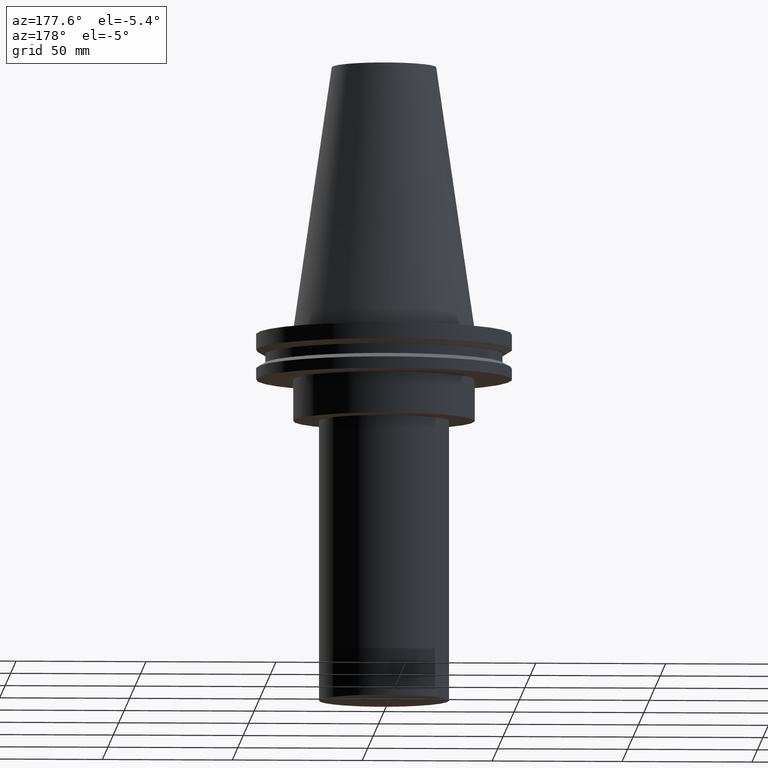
[diagram: clean part render]
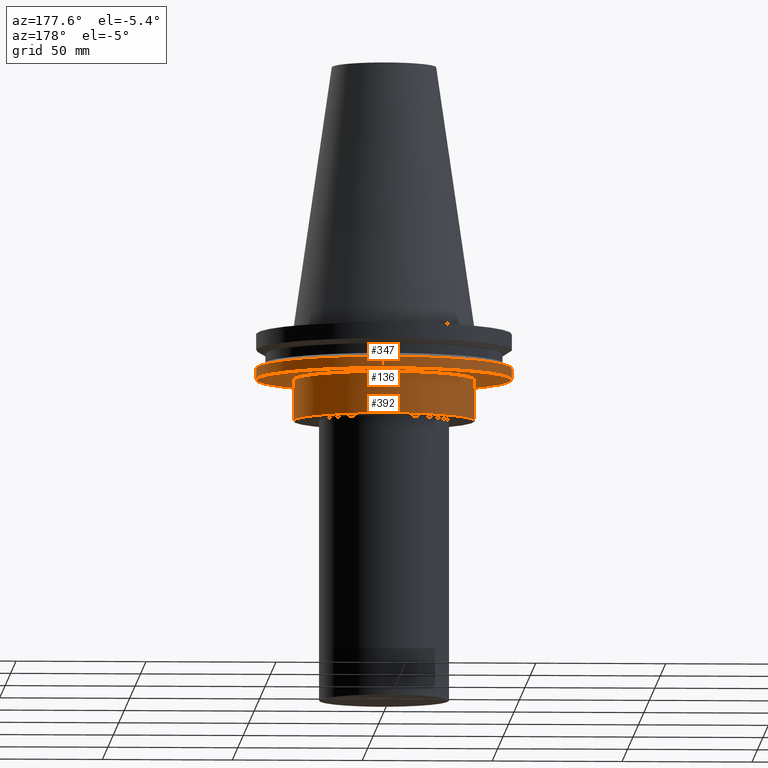
[diagram: same view with one multi-face feature highlighted, each face labeled with its STEP entity id]
A machine part, auxiliary view. The highlighted faces form ONE feature: a stepped (counterbored) hole: 2 coaxial cylindrical walls of radii 34.925 -> 49.215 mm joined by 1 annular planar shoulder face(s). The faces share edges in the B-rep.
Their STEP definitions:
[1] entity #347 (Cylinder):
#14 = AXIS2_PLACEMENT_3D ( 'NONE', #113, #89, #356 ) ;
#41 = DIRECTION ( 'NONE',  ( -0.000000000000000000, -0.000000000000000000, 1.000000000000000000 ) ) ;
#50 = FACE_OUTER_BOUND ( 'NONE', #117, .T. ) ;
#55 = VERTEX_POINT ( 'NONE', #387 ) ;
#64 = DIRECTION ( 'NONE',  ( -0.000000000000000000, -0.000000000000000000, 1.000000000000000000 ) ) ;
#72 = DIRECTION ( 'NONE',  ( 1.000000000000000000, 0.000000000000000000, 0.000000000000000000 ) ) ;
#73 = EDGE_CURVE ( 'NONE', #55, #55, #172, .T. ) ;
#89 = DIRECTION ( 'NONE',  ( -0.000000000000000000, -0.000000000000000000, 1.000000000000000000 ) ) ;
#113 = CARTESIAN_POINT ( 'NONE',  ( 0.000000000000000000, 0.000000000000000000, 101.5999999999999943 ) ) ;
#115 = EDGE_CURVE ( 'NONE', #313, #313, #226, .T. ) ;
#117 = EDGE_LOOP ( 'NONE', ( #214 ) ) ;
#172 = CIRCLE ( 'NONE', #339, 49.21499999999998920 ) ;
#192 = CARTESIAN_POINT ( 'NONE',  ( 49.21499999999998920, 0.000000000000000000, -14.65761014474876944 ) ) ;
#206 = CYLINDRICAL_SURFACE ( 'NONE', #14, 49.21499999999998920 ) ;
#214 = ORIENTED_EDGE ( 'NONE', *, *, #115, .F. ) ;
#221 = CARTESIAN_POINT ( 'NONE',  ( 0.000000000000000000, 0.000000000000000000, -19.04999999999999716 ) ) ;
#226 = CIRCLE ( 'NONE', #318, 49.21499999999998920 ) ;
#266 = ORIENTED_EDGE ( 'NONE', *, *, #73, .T. ) ;
#305 = FACE_OUTER_BOUND ( 'NONE', #308, .T. ) ;
#308 = EDGE_LOOP ( 'NONE', ( #266 ) ) ;
#313 = VERTEX_POINT ( 'NONE', #192 ) ;
#318 = AXIS2_PLACEMENT_3D ( 'NONE', #380, #41, #72 ) ;
#339 = AXIS2_PLACEMENT_3D ( 'NONE', #221, #64, #341 ) ;
#341 = DIRECTION ( 'NONE',  ( 1.000000000000000000, 0.000000000000000000, 0.000000000000000000 ) ) ;
#347 = ADVANCED_FACE ( 'NONE', ( #50, #305 ), #206, .T. ) ;
#356 = DIRECTION ( 'NONE',  ( 1.000000000000000000, 0.000000000000000000, 0.000000000000000000 ) ) ;
#380 = CARTESIAN_POINT ( 'NONE',  ( 0.000000000000000000, 0.000000000000000000, -14.65761014474876944 ) ) ;
#387 = CARTESIAN_POINT ( 'NONE',  ( 49.21499999999998920, 0.000000000000000000, -19.04999999999999716 ) ) ;
[2] entity #392 (Cylinder):
#10 = CARTESIAN_POINT ( 'NONE',  ( 34.92499999999999716, 0.000000000000000000, -35.00000000000000000 ) ) ;
#20 = EDGE_CURVE ( 'NONE', #332, #332, #350, .T. ) ;
#24 = CARTESIAN_POINT ( 'NONE',  ( 0.000000000000000000, 0.000000000000000000, -19.04999999999999716 ) ) ;
#45 = AXIS2_PLACEMENT_3D ( 'NONE', #24, #182, #252 ) ;
#83 = EDGE_LOOP ( 'NONE', ( #147 ) ) ;
#87 = DIRECTION ( 'NONE',  ( 1.000000000000000000, 0.000000000000000000, 0.000000000000000000 ) ) ;
#91 = CYLINDRICAL_SURFACE ( 'NONE', #111, 34.92499999999999716 ) ;
#111 = AXIS2_PLACEMENT_3D ( 'NONE', #302, #245, #329 ) ;
#147 = ORIENTED_EDGE ( 'NONE', *, *, #20, .F. ) ;
#153 = DIRECTION ( 'NONE',  ( -0.000000000000000000, -0.000000000000000000, 1.000000000000000000 ) ) ;
#177 = FACE_OUTER_BOUND ( 'NONE', #271, .T. ) ;
#182 = DIRECTION ( 'NONE',  ( -0.000000000000000000, -0.000000000000000000, 1.000000000000000000 ) ) ;
#245 = DIRECTION ( 'NONE',  ( -0.000000000000000000, -0.000000000000000000, 1.000000000000000000 ) ) ;
#252 = DIRECTION ( 'NONE',  ( 1.000000000000000000, 0.000000000000000000, 0.000000000000000000 ) ) ;
#271 = EDGE_LOOP ( 'NONE', ( #275 ) ) ;
#274 = CARTESIAN_POINT ( 'NONE',  ( 0.000000000000000000, 0.000000000000000000, -35.00000000000000000 ) ) ;
#275 = ORIENTED_EDGE ( 'NONE', *, *, #388, .T. ) ;
#288 = VERTEX_POINT ( 'NONE', #10 ) ;
#302 = CARTESIAN_POINT ( 'NONE',  ( 0.000000000000000000, 0.000000000000000000, 101.5999999999999943 ) ) ;
#303 = CIRCLE ( 'NONE', #386, 34.92499999999999716 ) ;
#329 = DIRECTION ( 'NONE',  ( 1.000000000000000000, 0.000000000000000000, 0.000000000000000000 ) ) ;
#332 = VERTEX_POINT ( 'NONE', #360 ) ;
#350 = CIRCLE ( 'NONE', #45, 34.92499999999999716 ) ;
#360 = CARTESIAN_POINT ( 'NONE',  ( 34.92499999999999716, 0.000000000000000000, -19.04999999999999716 ) ) ;
#362 = FACE_OUTER_BOUND ( 'NONE', #83, .T. ) ;
#386 = AXIS2_PLACEMENT_3D ( 'NONE', #274, #153, #87 ) ;
#388 = EDGE_CURVE ( 'NONE', #288, #288, #303, .T. ) ;
#392 = ADVANCED_FACE ( 'NONE', ( #362, #177 ), #91, .T. ) ;
[3] entity #136 (Plane):
#20 = EDGE_CURVE ( 'NONE', #332, #332, #350, .T. ) ;
#24 = CARTESIAN_POINT ( 'NONE',  ( 0.000000000000000000, 0.000000000000000000, -19.04999999999999716 ) ) ;
#45 = AXIS2_PLACEMENT_3D ( 'NONE', #24, #182, #252 ) ;
#55 = VERTEX_POINT ( 'NONE', #387 ) ;
#64 = DIRECTION ( 'NONE',  ( -0.000000000000000000, -0.000000000000000000, 1.000000000000000000 ) ) ;
#69 = PLANE ( 'NONE',  #85 ) ;
#73 = EDGE_CURVE ( 'NONE', #55, #55, #172, .T. ) ;
#85 = AXIS2_PLACEMENT_3D ( 'NONE', #165, #135, #99 ) ;
#88 = ORIENTED_EDGE ( 'NONE', *, *, #73, .F. ) ;
#99 = DIRECTION ( 'NONE',  ( 1.000000000000000000, 0.000000000000000000, 0.000000000000000000 ) ) ;
#101 = FACE_BOUND ( 'NONE', #327, .T. ) ;
#135 = DIRECTION ( 'NONE',  ( 0.000000000000000000, -0.000000000000000000, 1.000000000000000000 ) ) ;
#136 = ADVANCED_FACE ( 'NONE', ( #162, #101 ), #69, .F. ) ;
#162 = FACE_OUTER_BOUND ( 'NONE', #179, .T. ) ;
#165 = CARTESIAN_POINT ( 'NONE',  ( 0.000000000000000000, 49.21499999999998920, -19.04999999999999716 ) ) ;
#172 = CIRCLE ( 'NONE', #339, 49.21499999999998920 ) ;
#179 = EDGE_LOOP ( 'NONE', ( #88 ) ) ;
#182 = DIRECTION ( 'NONE',  ( -0.000000000000000000, -0.000000000000000000, 1.000000000000000000 ) ) ;
#221 = CARTESIAN_POINT ( 'NONE',  ( 0.000000000000000000, 0.000000000000000000, -19.04999999999999716 ) ) ;
#252 = DIRECTION ( 'NONE',  ( 1.000000000000000000, 0.000000000000000000, 0.000000000000000000 ) ) ;
#298 = ORIENTED_EDGE ( 'NONE', *, *, #20, .T. ) ;
#327 = EDGE_LOOP ( 'NONE', ( #298 ) ) ;
#332 = VERTEX_POINT ( 'NONE', #360 ) ;
#339 = AXIS2_PLACEMENT_3D ( 'NONE', #221, #64, #341 ) ;
#341 = DIRECTION ( 'NONE',  ( 1.000000000000000000, 0.000000000000000000, 0.000000000000000000 ) ) ;
#350 = CIRCLE ( 'NONE', #45, 34.92499999999999716 ) ;
#360 = CARTESIAN_POINT ( 'NONE',  ( 34.92499999999999716, 0.000000000000000000, -19.04999999999999716 ) ) ;
#387 = CARTESIAN_POINT ( 'NONE',  ( 49.21499999999998920, 0.000000000000000000, -19.04999999999999716 ) ) ;